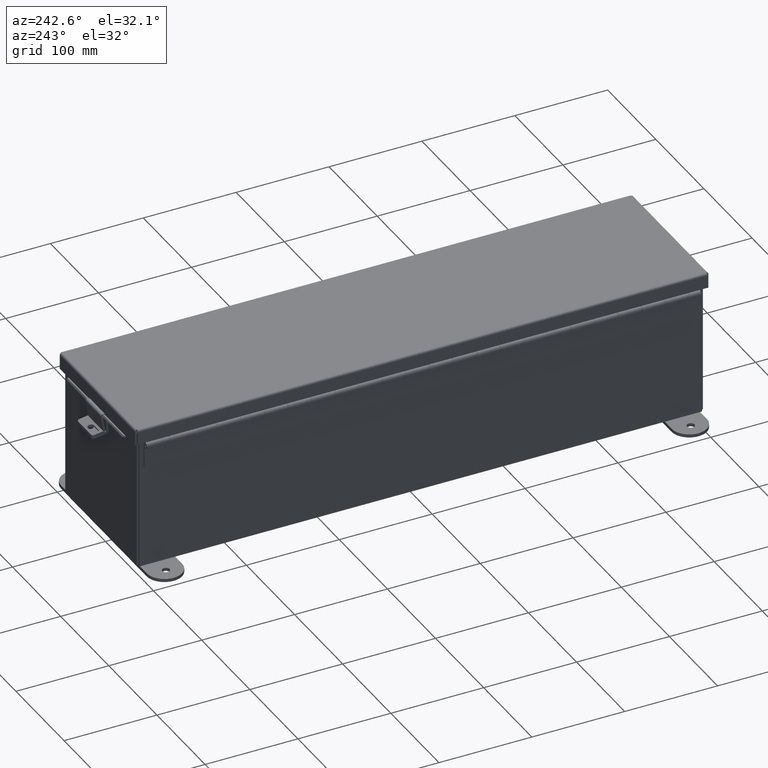
[diagram: clean part render]
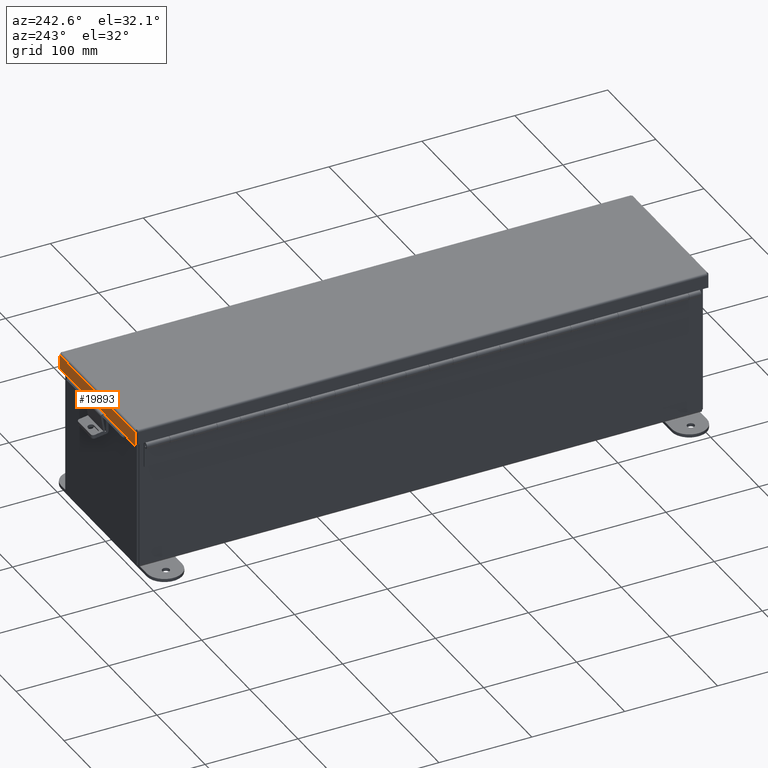
[diagram: same view with one face highlighted and labeled with its STEP entity id]
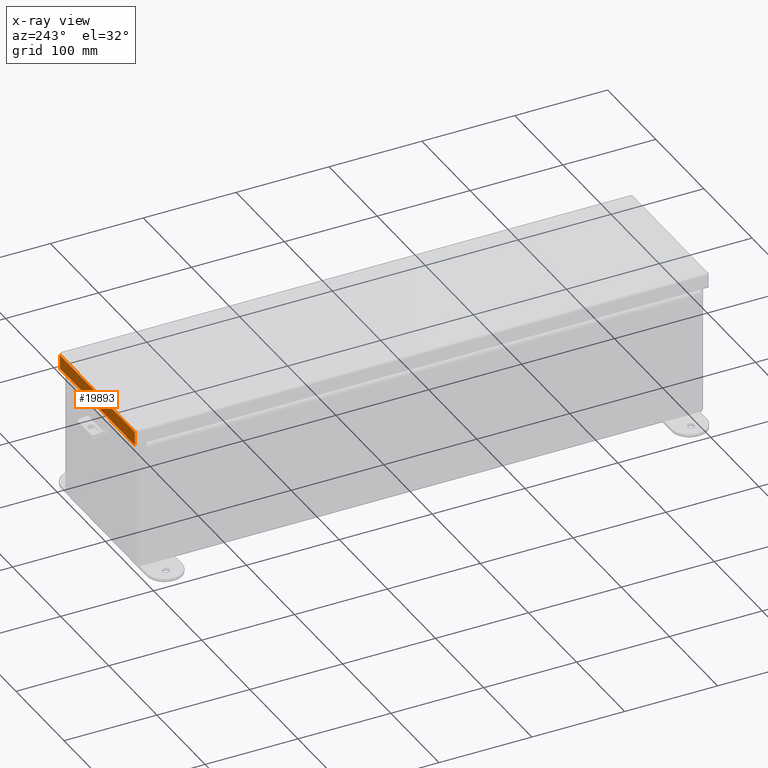
[diagram: x-ray of the same camera — body ghosted, the highlighted face saturated]
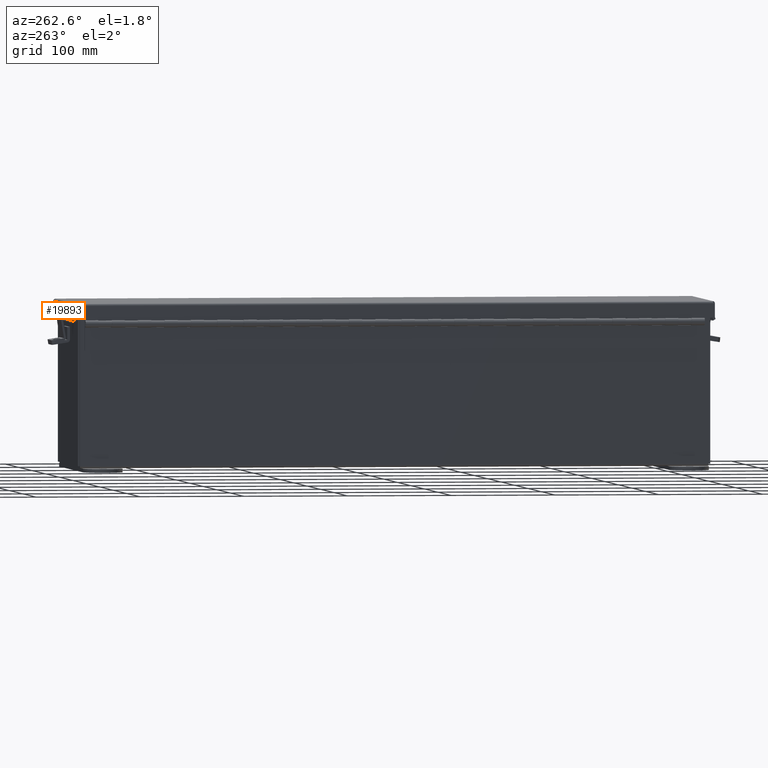
[diagram: same view with one face highlighted and labeled with its STEP entity id]
A machine part, auxiliary view. The second image highlights one B-rep face of the part: STEP entity #19893.
The next image is the same camera in x-ray: the body ghosted, the highlighted face saturated — about 0% of this face is hidden behind the body in this view.
A second angle (auxiliary view) of the same face is appended — the face is thin or edge-on in the first view.
In plain terms, the highlighted planar face has unit normal (-0, -1, -0).
Its self-contained STEP definition (entity closure, byte-faithful):
#199 = LINE ( 'NONE', #3678, #10080 ) ;
#351 = CARTESIAN_POINT ( 'NONE',  ( 3.074478932188147200, 12.15624999999997700, 0.0000000000000000000 ) ) ;
#523 = EDGE_CURVE ( 'NONE', #2733, #21754, #1288, .T. ) ;
#887 = CARTESIAN_POINT ( 'NONE',  ( -3.074478932188143200, 12.15624999999997700, -4.370956789862821100E-014 ) ) ;
#911 = VERTEX_POINT ( 'NONE', #10255 ) ;
#1043 = VECTOR ( 'NONE', #2666, 39.37007874015748100 ) ;
#1288 = LINE ( 'NONE', #887, #14773 ) ;
#2099 = AXIS2_PLACEMENT_3D ( 'NONE', #11483, #6226, #18532 ) ;
#2191 = VERTEX_POINT ( 'NONE', #11341 ) ;
#2360 = LINE ( 'NONE', #18167, #20503 ) ;
#2666 = DIRECTION ( 'NONE',  ( 1.752481305030332700E-014, -1.401985044024260600E-013, -1.000000000000000000 ) ) ;
#2733 = VERTEX_POINT ( 'NONE', #4676 ) ;
#2801 = EDGE_CURVE ( 'NONE', #11202, #3256, #3693, .T. ) ;
#3256 = VERTEX_POINT ( 'NONE', #18560 ) ;
#3678 = CARTESIAN_POINT ( 'NONE',  ( -2.324478932188143200, 12.15624999999997700, 0.5967115427318815400 ) ) ;
#3693 = LINE ( 'NONE', #10131, #17155 ) ;
#4198 = LINE ( 'NONE', #351, #12467 ) ;
#4423 = ORIENTED_EDGE ( 'NONE', *, *, #15400, .F. ) ;
#4676 = CARTESIAN_POINT ( 'NONE',  ( -3.074478932188142700, 12.15624999999997700, 0.01300000000000010700 ) ) ;
#4968 = LINE ( 'NONE', #13522, #13817 ) ;
#5116 = ORIENTED_EDGE ( 'NONE', *, *, #523, .T. ) ;
#5874 = DIRECTION ( 'NONE',  ( 1.000000000000000000, 5.729905538433564000E-030, -1.577721810442017300E-030 ) ) ;
#6226 = DIRECTION ( 'NONE',  ( -5.799650407338232000E-030, -1.000000000000000000, 3.569293475308533200E-015 ) ) ;
#6369 = EDGE_CURVE ( 'NONE', #21754, #911, #7477, .T. ) ;
#6761 = DIRECTION ( 'NONE',  ( 1.000000000000000000, 5.765476073039917900E-030, 1.081919997490687600E-017 ) ) ;
#7408 = EDGE_CURVE ( 'NONE', #2733, #2191, #2360, .T. ) ;
#7477 = LINE ( 'NONE', #12001, #19864 ) ;
#7766 = ORIENTED_EDGE ( 'NONE', *, *, #17532, .F. ) ;
#8271 = DIRECTION ( 'NONE',  ( -1.000000000000000000, -5.766883393365799000E-030, 1.577721810442017300E-030 ) ) ;
#9631 = ORIENTED_EDGE ( 'NONE', *, *, #7408, .F. ) ;
#9967 = VERTEX_POINT ( 'NONE', #18991 ) ;
#10080 = VECTOR ( 'NONE', #14218, 39.37007874015748100 ) ;
#10131 = CARTESIAN_POINT ( 'NONE',  ( -6.402768735150616900E-018, 12.15624999999998000, 0.6122999999999994000 ) ) ;
#10255 = CARTESIAN_POINT ( 'NONE',  ( -2.324478932188141400, 12.15624999999998000, 0.6123000000000005100 ) ) ;
#10422 = FACE_OUTER_BOUND ( 'NONE', #14293, .T. ) ;
#10879 = EDGE_CURVE ( 'NONE', #11202, #9967, #15077, .T. ) ;
#11202 = VERTEX_POINT ( 'NONE', #17481 ) ;
#11341 = CARTESIAN_POINT ( 'NONE',  ( 3.074478932188147200, 12.15624999999997700, 0.01300000000000010700 ) ) ;
#11440 = CARTESIAN_POINT ( 'NONE',  ( 2.324478932188149800, 12.15624999999998000, 0.6123000000000005100 ) ) ;
#11483 = CARTESIAN_POINT ( 'NONE',  ( 0.0000000000000000000, 12.15624999999997700, -4.370956789862821100E-014 ) ) ;
#12001 = CARTESIAN_POINT ( 'NONE',  ( -6.402768735150616900E-018, 12.15624999999998000, 0.6122999999999994000 ) ) ;
#12313 = ORIENTED_EDGE ( 'NONE', *, *, #10879, .F. ) ;
#12467 = VECTOR ( 'NONE', #21388, 39.37007874015748100 ) ;
#13522 = CARTESIAN_POINT ( 'NONE',  ( 2.324478932188147600, 12.15624999999997700, 0.5967115427318815400 ) ) ;
#13694 = DIRECTION ( 'NONE',  ( 1.000000000000000000, 5.765476073039917900E-030, 1.081919997490687600E-017 ) ) ;
#13817 = VECTOR ( 'NONE', #8271, 39.37007874015748100 ) ;
#14218 = DIRECTION ( 'NONE',  ( 1.577721810442017300E-030, 1.401985044024248200E-013, 1.000000000000000000 ) ) ;
#14293 = EDGE_LOOP ( 'NONE', ( #12313, #15366, #7766, #9631, #5116, #17871, #20915, #4423 ) ) ;
#14773 = VECTOR ( 'NONE', #14953, 39.37007874015748100 ) ;
#14953 = DIRECTION ( 'NONE',  ( 1.577721810442017300E-030, 3.569293475308533200E-015, 1.000000000000000000 ) ) ;
#15077 = LINE ( 'NONE', #11440, #1043 ) ;
#15366 = ORIENTED_EDGE ( 'NONE', *, *, #2801, .T. ) ;
#15400 = EDGE_CURVE ( 'NONE', #9967, #16070, #4968, .T. ) ;
#16070 = VERTEX_POINT ( 'NONE', #17449 ) ;
#16753 = PLANE ( 'NONE',  #2099 ) ;
#17155 = VECTOR ( 'NONE', #13694, 39.37007874015748100 ) ;
#17449 = CARTESIAN_POINT ( 'NONE',  ( -2.324478932188143200, 12.15624999999998000, 0.5967115427318815400 ) ) ;
#17481 = CARTESIAN_POINT ( 'NONE',  ( 2.324478932188149800, 12.15624999999998000, 0.6122999999999994000 ) ) ;
#17532 = EDGE_CURVE ( 'NONE', #2191, #3256, #4198, .T. ) ;
#17871 = ORIENTED_EDGE ( 'NONE', *, *, #6369, .T. ) ;
#18167 = CARTESIAN_POINT ( 'NONE',  ( 3.156250000000010200, 12.15624999999997700, 0.01300000000000010700 ) ) ;
#18532 = DIRECTION ( 'NONE',  ( -1.577721810442017300E-030, -3.569293475308533200E-015, -1.000000000000000000 ) ) ;
#18560 = CARTESIAN_POINT ( 'NONE',  ( 3.074478932188142300, 12.15624999999998000, 0.6123000000000005100 ) ) ;
#18991 = CARTESIAN_POINT ( 'NONE',  ( 2.324478932188147600, 12.15624999999998000, 0.5967115427318815400 ) ) ;
#19448 = CARTESIAN_POINT ( 'NONE',  ( -3.074478932188148100, 12.15624999999998000, 0.6122999999999994000 ) ) ;
#19864 = VECTOR ( 'NONE', #6761, 39.37007874015748100 ) ;
#19893 = ADVANCED_FACE ( 'NONE', ( #10422 ), #16753, .F. ) ;
#20503 = VECTOR ( 'NONE', #5874, 39.37007874015748100 ) ;
#20915 = ORIENTED_EDGE ( 'NONE', *, *, #22312, .F. ) ;
#21388 = DIRECTION ( 'NONE',  ( 1.577721810442017300E-030, 3.569293475308533200E-015, 1.000000000000000000 ) ) ;
#21754 = VERTEX_POINT ( 'NONE', #19448 ) ;
#22312 = EDGE_CURVE ( 'NONE', #16070, #911, #199, .T. ) ;